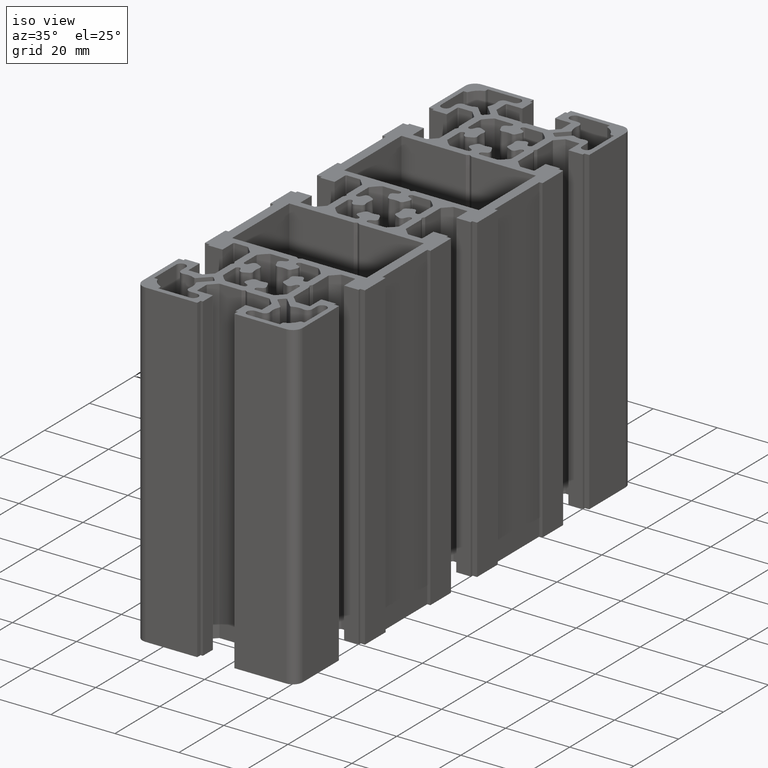
[diagram: clean part render]
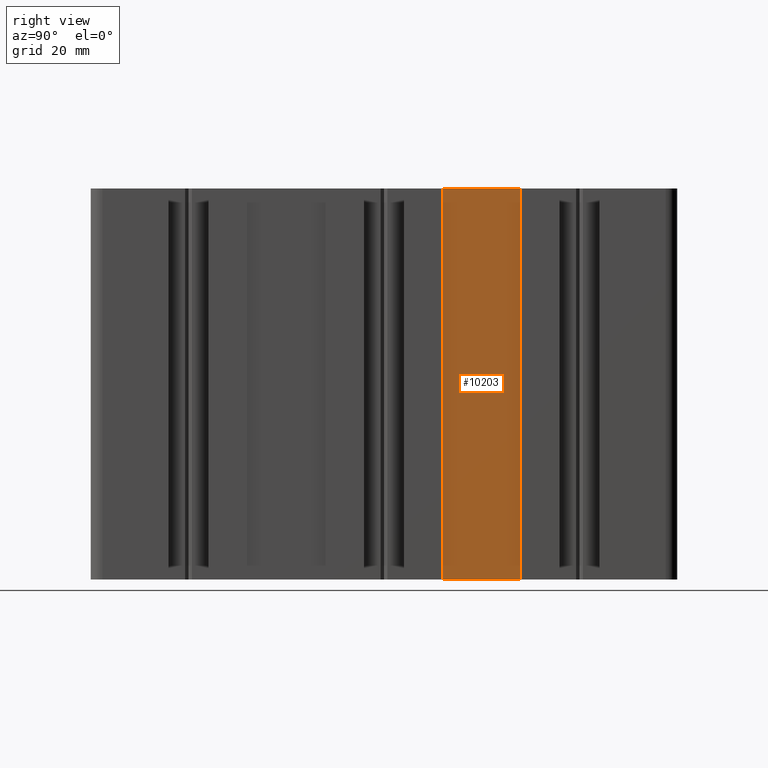
[diagram: tour spotlight — one face highlighted and labeled with its STEP entity id]
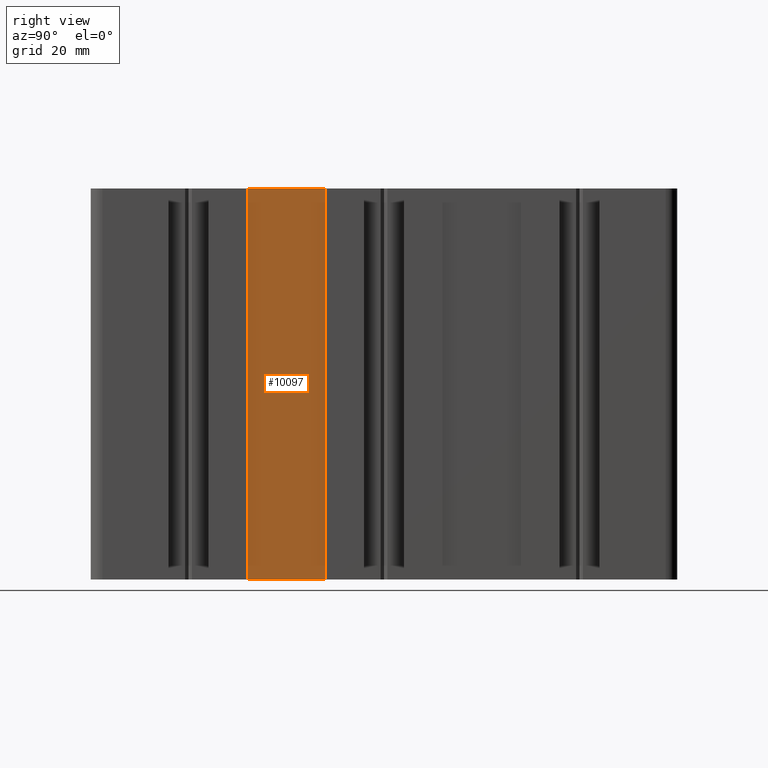
[diagram: tour spotlight — one face highlighted and labeled with its STEP entity id]
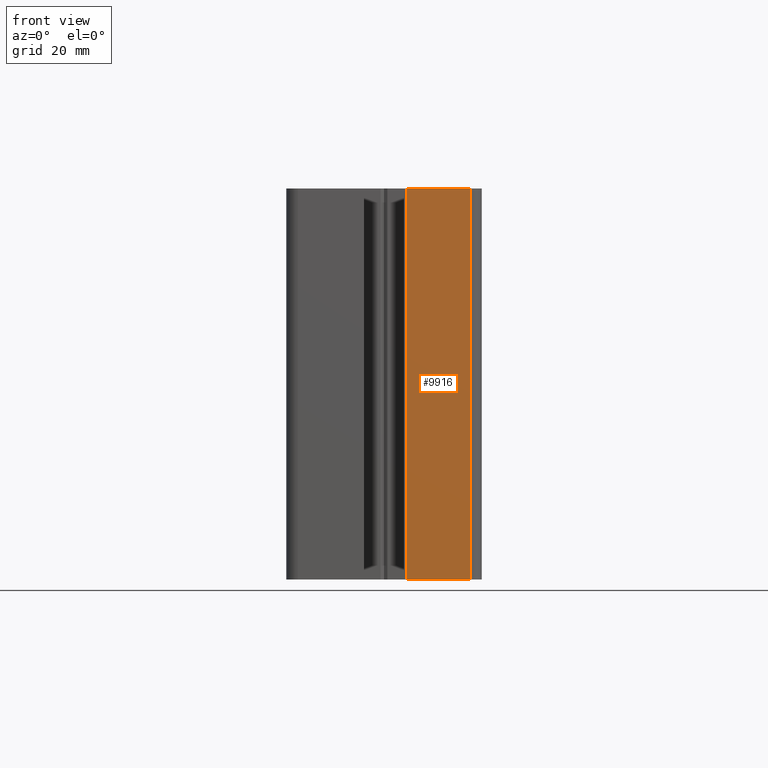
[diagram: tour spotlight — one face highlighted and labeled with its STEP entity id]
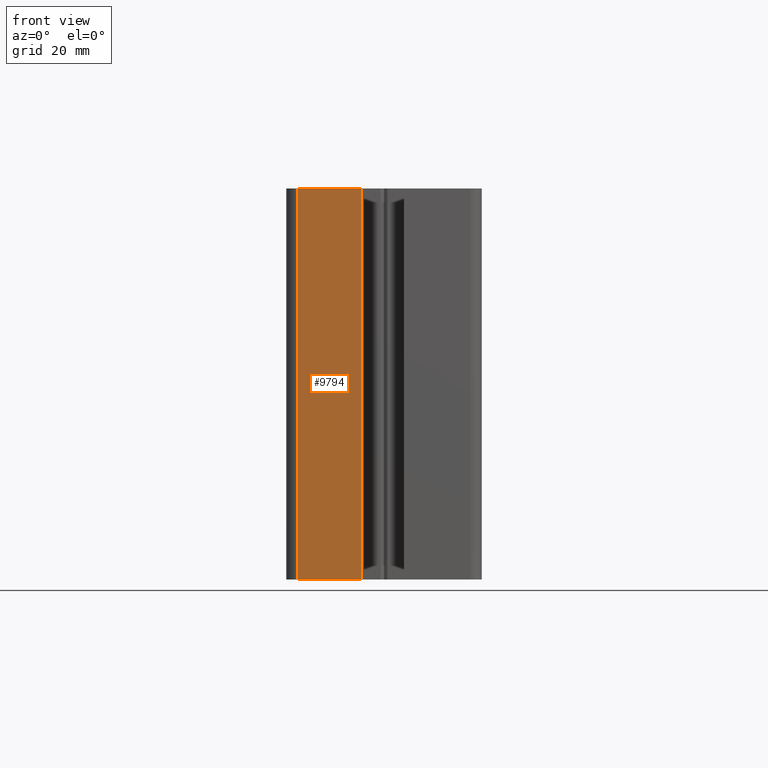
[diagram: tour spotlight — one face highlighted and labeled with its STEP entity id]
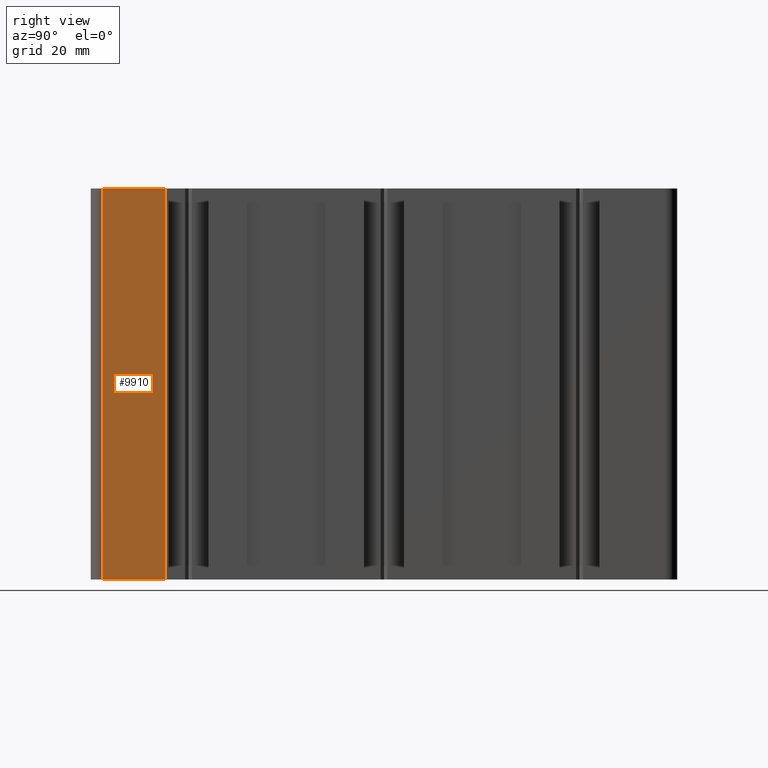
[diagram: tour spotlight — one face highlighted and labeled with its STEP entity id]
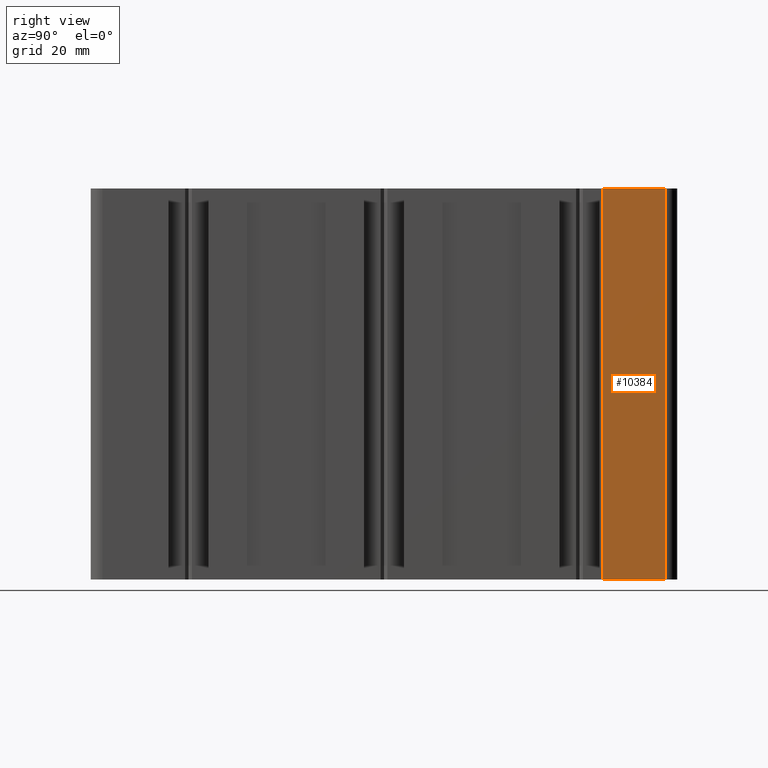
[diagram: tour spotlight — one face highlighted and labeled with its STEP entity id]
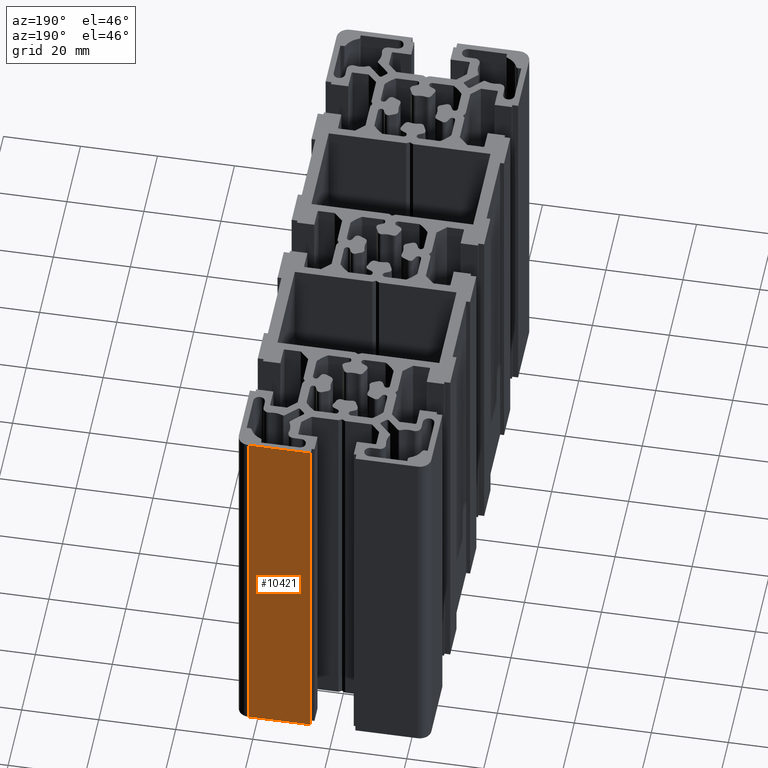
[diagram: tour spotlight — one face highlighted and labeled with its STEP entity id]
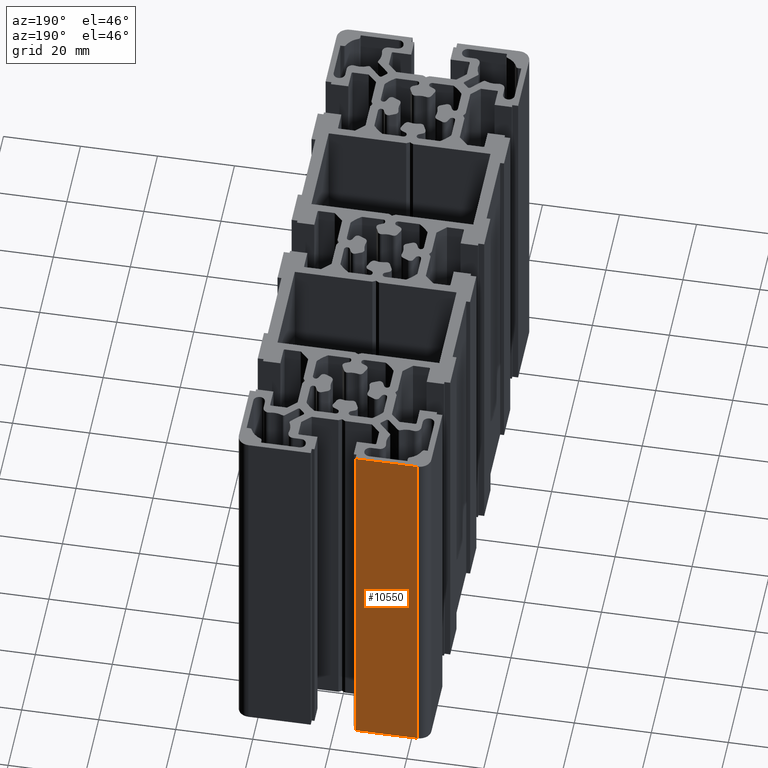
[diagram: tour spotlight — one face highlighted and labeled with its STEP entity id]
A machine part: a face-by-face anatomy tour. The part has 509 B-rep faces; the first image is the clean iso view, then the 8 largest visible faces are spotlighted one at a time (largest first), each with its STEP entity span.

Face 1 — right view, entity #10203. In plain terms, the highlighted planar face has unit normal (-1, 0, 0).
Definition (entity closure, byte-faithful):
#342 = EDGE_CURVE ( 'NONE', #16862, #16540, #12971, .T. ) ;
#2269 = FACE_OUTER_BOUND ( 'NONE', #10215, .T. ) ;
#2281 = PLANE ( 'NONE',  #2315 ) ;
#2310 = DIRECTION ( 'NONE',  ( -8.500145032286353200E-015, -1.000000000000000000, 0.0000000000000000000 ) ) ;
#2315 = AXIS2_PLACEMENT_3D ( 'NONE', #2325, #2321, #2310 ) ;
#2316 = DIRECTION ( 'NONE',  ( -0.0000000000000000000, -0.0000000000000000000, -1.000000000000000000 ) ) ;
#2317 = VECTOR ( 'NONE', #2316, 1000.000000000000000 ) ;
#2318 = CARTESIAN_POINT ( 'NONE',  ( 23.99999999999986100, 34.99999999999977300, 100.0000000000000000 ) ) ;
#2319 = LINE ( 'NONE', #2318, #2317 ) ;
#2321 = DIRECTION ( 'NONE',  ( -1.000000000000000000, 8.500145032286353200E-015, 0.0000000000000000000 ) ) ;
#2325 = CARTESIAN_POINT ( 'NONE',  ( 23.99999999999969100, 14.99999999999977100, 100.0000000000000000 ) ) ;
#2411 = DIRECTION ( 'NONE',  ( -0.0000000000000000000, -0.0000000000000000000, -1.000000000000000000 ) ) ;
#2412 = VECTOR ( 'NONE', #2411, 1000.000000000000000 ) ;
#2413 = CARTESIAN_POINT ( 'NONE',  ( 23.99999999999969100, 14.99999999999977100, 100.0000000000000000 ) ) ;
#2414 = LINE ( 'NONE', #2413, #2412 ) ;
#6515 = CARTESIAN_POINT ( 'NONE',  ( 23.99999999999986100, 34.99999999999977300, 100.0000000000000000 ) ) ;
#6546 = CARTESIAN_POINT ( 'NONE',  ( 23.99999999999969100, 14.99999999999977100, 100.0000000000000000 ) ) ;
#7972 = VERTEX_POINT ( 'NONE', #15868 ) ;
#8006 = EDGE_CURVE ( 'NONE', #7972, #8016, #15913, .T. ) ;
#8016 = VERTEX_POINT ( 'NONE', #15905 ) ;
#10201 = EDGE_CURVE ( 'NONE', #16540, #8016, #2319, .T. ) ;
#10202 = ORIENTED_EDGE ( 'NONE', *, *, #10201, .F. ) ;
#10203 = ADVANCED_FACE ( 'NONE', ( #2269 ), #2281, .F. ) ;
#10204 = ORIENTED_EDGE ( 'NONE', *, *, #8006, .T. ) ;
#10206 = ORIENTED_EDGE ( 'NONE', *, *, #342, .F. ) ;
#10215 = EDGE_LOOP ( 'NONE', ( #10204, #10202, #10206, #10254 ) ) ;
#10254 = ORIENTED_EDGE ( 'NONE', *, *, #10260, .T. ) ;
#10260 = EDGE_CURVE ( 'NONE', #16862, #7972, #2414, .T. ) ;
#12968 = DIRECTION ( 'NONE',  ( 8.500145032286353200E-015, 1.000000000000000000, 0.0000000000000000000 ) ) ;
#12969 = VECTOR ( 'NONE', #12968, 1000.000000000000000 ) ;
#12970 = CARTESIAN_POINT ( 'NONE',  ( 23.99999999999969100, 14.99999999999977100, 100.0000000000000000 ) ) ;
#12971 = LINE ( 'NONE', #12970, #12969 ) ;
#15868 = CARTESIAN_POINT ( 'NONE',  ( 23.99999999999969100, 14.99999999999977100, 0.0000000000000000000 ) ) ;
#15905 = CARTESIAN_POINT ( 'NONE',  ( 23.99999999999986100, 34.99999999999977300, 0.0000000000000000000 ) ) ;
#15910 = DIRECTION ( 'NONE',  ( 8.500145032286353200E-015, 1.000000000000000000, 0.0000000000000000000 ) ) ;
#15911 = VECTOR ( 'NONE', #15910, 1000.000000000000000 ) ;
#15912 = CARTESIAN_POINT ( 'NONE',  ( 23.99999999999969100, 14.99999999999977100, 0.0000000000000000000 ) ) ;
#15913 = LINE ( 'NONE', #15912, #15911 ) ;
#16540 = VERTEX_POINT ( 'NONE', #6515 ) ;
#16862 = VERTEX_POINT ( 'NONE', #6546 ) ;

Face 2 — right view, entity #10097. In plain terms, the highlighted planar face has unit normal (-1, -0, 0).
Definition (entity closure, byte-faithful):
#2029 = DIRECTION ( 'NONE',  ( -0.0000000000000000000, -0.0000000000000000000, -1.000000000000000000 ) ) ;
#2030 = VECTOR ( 'NONE', #2029, 1000.000000000000000 ) ;
#2031 = CARTESIAN_POINT ( 'NONE',  ( 24.00000000000018100, -14.99999999999989000, 100.0000000000000000 ) ) ;
#2033 = LINE ( 'NONE', #2031, #2030 ) ;
#2122 = PLANE ( 'NONE',  #2137 ) ;
#2123 = DIRECTION ( 'NONE',  ( -0.0000000000000000000, -0.0000000000000000000, -1.000000000000000000 ) ) ;
#2124 = VECTOR ( 'NONE', #2123, 1000.000000000000000 ) ;
#2125 = CARTESIAN_POINT ( 'NONE',  ( 24.00000000000099100, -34.99999999999989300, 100.0000000000000000 ) ) ;
#2126 = LINE ( 'NONE', #2125, #2124 ) ;
#2135 = FACE_OUTER_BOUND ( 'NONE', #10095, .T. ) ;
#2137 = AXIS2_PLACEMENT_3D ( 'NONE', #2143, #2179, #2178 ) ;
#2143 = CARTESIAN_POINT ( 'NONE',  ( 24.00000000000018100, -14.99999999999989000, 100.0000000000000000 ) ) ;
#2178 = DIRECTION ( 'NONE',  ( 4.059252933785728000E-014, -1.000000000000000000, 0.0000000000000000000 ) ) ;
#2179 = DIRECTION ( 'NONE',  ( -1.000000000000000000, -4.059252933785728000E-014, 0.0000000000000000000 ) ) ;
#6748 = VERTEX_POINT ( 'NONE', #13634 ) ;
#6760 = VERTEX_POINT ( 'NONE', #13635 ) ;
#6766 = EDGE_CURVE ( 'NONE', #6748, #6760, #13646, .T. ) ;
#8081 = EDGE_CURVE ( 'NONE', #8095, #8100, #16033, .T. ) ;
#8095 = VERTEX_POINT ( 'NONE', #16069 ) ;
#8100 = VERTEX_POINT ( 'NONE', #16062 ) ;
#10032 = EDGE_CURVE ( 'NONE', #6760, #8100, #2033, .T. ) ;
#10033 = ORIENTED_EDGE ( 'NONE', *, *, #8081, .T. ) ;
#10036 = ORIENTED_EDGE ( 'NONE', *, *, #10088, .T. ) ;
#10088 = EDGE_CURVE ( 'NONE', #6748, #8095, #2126, .T. ) ;
#10092 = ORIENTED_EDGE ( 'NONE', *, *, #6766, .F. ) ;
#10094 = ORIENTED_EDGE ( 'NONE', *, *, #10032, .F. ) ;
#10095 = EDGE_LOOP ( 'NONE', ( #10033, #10094, #10092, #10036 ) ) ;
#10097 = ADVANCED_FACE ( 'NONE', ( #2135 ), #2122, .F. ) ;
#13634 = CARTESIAN_POINT ( 'NONE',  ( 24.00000000000099100, -34.99999999999989300, 100.0000000000000000 ) ) ;
#13635 = CARTESIAN_POINT ( 'NONE',  ( 24.00000000000018100, -14.99999999999989000, 100.0000000000000000 ) ) ;
#13643 = DIRECTION ( 'NONE',  ( -4.059252933785728000E-014, 1.000000000000000000, -0.0000000000000000000 ) ) ;
#13644 = VECTOR ( 'NONE', #13643, 1000.000000000000000 ) ;
#13645 = CARTESIAN_POINT ( 'NONE',  ( 24.00000000000018100, -14.99999999999989000, 100.0000000000000000 ) ) ;
#13646 = LINE ( 'NONE', #13645, #13644 ) ;
#16030 = DIRECTION ( 'NONE',  ( -4.059252933785728000E-014, 1.000000000000000000, -0.0000000000000000000 ) ) ;
#16031 = VECTOR ( 'NONE', #16030, 1000.000000000000000 ) ;
#16032 = CARTESIAN_POINT ( 'NONE',  ( 24.00000000000018100, -14.99999999999989000, 0.0000000000000000000 ) ) ;
#16033 = LINE ( 'NONE', #16032, #16031 ) ;
#16062 = CARTESIAN_POINT ( 'NONE',  ( 24.00000000000018100, -14.99999999999989000, 0.0000000000000000000 ) ) ;
#16069 = CARTESIAN_POINT ( 'NONE',  ( 24.00000000000099100, -34.99999999999989300, 0.0000000000000000000 ) ) ;

Face 3 — front view, entity #9916. In plain terms, the highlighted planar face has unit normal (-0, 1, 0).
Definition (entity closure, byte-faithful):
#1136 = PLANE ( 'NONE',  #1628 ) ;
#1618 = FACE_OUTER_BOUND ( 'NONE', #9914, .T. ) ;
#1628 = AXIS2_PLACEMENT_3D ( 'NONE', #1876, #1862, #1867 ) ;
#1797 = DIRECTION ( 'NONE',  ( -0.0000000000000000000, -0.0000000000000000000, -1.000000000000000000 ) ) ;
#1798 = VECTOR ( 'NONE', #1797, 1000.000000000000000 ) ;
#1799 = CARTESIAN_POINT ( 'NONE',  ( 5.799999237062976000, -75.00000000000072500, 100.0000000000000000 ) ) ;
#1805 = LINE ( 'NONE', #1799, #1798 ) ;
#1862 = DIRECTION ( 'NONE',  ( -3.255283406550048900E-014, 1.000000000000000000, 0.0000000000000000000 ) ) ;
#1867 = DIRECTION ( 'NONE',  ( -1.000000000000000000, -3.255283406550048900E-014, 0.0000000000000000000 ) ) ;
#1876 = CARTESIAN_POINT ( 'NONE',  ( 5.799999237062976000, -75.00000000000072500, 100.0000000000000000 ) ) ;
#1906 = DIRECTION ( 'NONE',  ( -0.0000000000000000000, -0.0000000000000000000, -1.000000000000000000 ) ) ;
#1907 = VECTOR ( 'NONE', #1906, 1000.000000000000000 ) ;
#1908 = CARTESIAN_POINT ( 'NONE',  ( 22.00000000000243000, -75.00000000000018500, 100.0000000000000000 ) ) ;
#1909 = LINE ( 'NONE', #1908, #1907 ) ;
#6683 = VERTEX_POINT ( 'NONE', #13505 ) ;
#6690 = EDGE_CURVE ( 'NONE', #6718, #6683, #13546, .T. ) ;
#6718 = VERTEX_POINT ( 'NONE', #13561 ) ;
#8181 = VERTEX_POINT ( 'NONE', #16210 ) ;
#8182 = VERTEX_POINT ( 'NONE', #16205 ) ;
#8187 = EDGE_CURVE ( 'NONE', #8181, #8182, #16193, .T. ) ;
#9868 = EDGE_CURVE ( 'NONE', #6718, #8181, #1805, .T. ) ;
#9869 = ORIENTED_EDGE ( 'NONE', *, *, #8187, .T. ) ;
#9914 = EDGE_LOOP ( 'NONE', ( #9869, #9927, #9921, #9920 ) ) ;
#9916 = ADVANCED_FACE ( 'NONE', ( #1618 ), #1136, .F. ) ;
#9917 = EDGE_CURVE ( 'NONE', #6683, #8182, #1909, .T. ) ;
#9920 = ORIENTED_EDGE ( 'NONE', *, *, #9868, .T. ) ;
#9921 = ORIENTED_EDGE ( 'NONE', *, *, #6690, .F. ) ;
#9927 = ORIENTED_EDGE ( 'NONE', *, *, #9917, .F. ) ;
#13505 = CARTESIAN_POINT ( 'NONE',  ( 22.00000000000243000, -75.00000000000018500, 100.0000000000000000 ) ) ;
#13543 = DIRECTION ( 'NONE',  ( 1.000000000000000000, 3.255283406550048900E-014, 0.0000000000000000000 ) ) ;
#13544 = VECTOR ( 'NONE', #13543, 1000.000000000000000 ) ;
#13545 = CARTESIAN_POINT ( 'NONE',  ( 5.799999237062976000, -75.00000000000072500, 100.0000000000000000 ) ) ;
#13546 = LINE ( 'NONE', #13545, #13544 ) ;
#13561 = CARTESIAN_POINT ( 'NONE',  ( 5.799999237062976000, -75.00000000000072500, 100.0000000000000000 ) ) ;
#16191 = VECTOR ( 'NONE', #16246, 1000.000000000000000 ) ;
#16192 = CARTESIAN_POINT ( 'NONE',  ( 5.799999237062976000, -75.00000000000072500, 0.0000000000000000000 ) ) ;
#16193 = LINE ( 'NONE', #16192, #16191 ) ;
#16205 = CARTESIAN_POINT ( 'NONE',  ( 22.00000000000243000, -75.00000000000018500, 0.0000000000000000000 ) ) ;
#16210 = CARTESIAN_POINT ( 'NONE',  ( 5.799999237062976000, -75.00000000000072500, 0.0000000000000000000 ) ) ;
#16246 = DIRECTION ( 'NONE',  ( 1.000000000000000000, 3.255283406550048900E-014, 0.0000000000000000000 ) ) ;

Face 4 — front view, entity #9794. In plain terms, the highlighted planar face has unit normal (-0, 1, 0).
Definition (entity closure, byte-faithful):
#156 = CARTESIAN_POINT ( 'NONE',  ( -5.799999237058117700, -75.00000000000108000, 100.0000000000000000 ) ) ;
#160 = CARTESIAN_POINT ( 'NONE',  ( -21.99999999999757000, -75.00000000000160600, 100.0000000000000000 ) ) ;
#161 = DIRECTION ( 'NONE',  ( 1.000000000000000000, 3.255283406550048900E-014, -0.0000000000000000000 ) ) ;
#162 = VECTOR ( 'NONE', #161, 1000.000000000000000 ) ;
#163 = CARTESIAN_POINT ( 'NONE',  ( -5.799999237058117700, -75.00000000000108000, 100.0000000000000000 ) ) ;
#164 = LINE ( 'NONE', #163, #162 ) ;
#1675 = LINE ( 'NONE', #1729, #1728 ) ;
#1676 = DIRECTION ( 'NONE',  ( -0.0000000000000000000, -0.0000000000000000000, -1.000000000000000000 ) ) ;
#1677 = VECTOR ( 'NONE', #1676, 1000.000000000000000 ) ;
#1678 = CARTESIAN_POINT ( 'NONE',  ( -21.99999999999757000, -75.00000000000160600, 100.0000000000000000 ) ) ;
#1679 = FACE_OUTER_BOUND ( 'NONE', #9741, .T. ) ;
#1684 = LINE ( 'NONE', #1678, #1677 ) ;
#1720 = DIRECTION ( 'NONE',  ( -1.000000000000000000, -3.255283406550048900E-014, 0.0000000000000000000 ) ) ;
#1721 = DIRECTION ( 'NONE',  ( -3.255283406550048900E-014, 1.000000000000000000, 0.0000000000000000000 ) ) ;
#1722 = CARTESIAN_POINT ( 'NONE',  ( -5.799999237058117700, -75.00000000000108000, 100.0000000000000000 ) ) ;
#1723 = AXIS2_PLACEMENT_3D ( 'NONE', #1722, #1721, #1720 ) ;
#1725 = PLANE ( 'NONE',  #1723 ) ;
#1727 = DIRECTION ( 'NONE',  ( -0.0000000000000000000, -0.0000000000000000000, -1.000000000000000000 ) ) ;
#1728 = VECTOR ( 'NONE', #1727, 1000.000000000000000 ) ;
#1729 = CARTESIAN_POINT ( 'NONE',  ( -5.799999237058117700, -75.00000000000108000, 100.0000000000000000 ) ) ;
#8202 = VERTEX_POINT ( 'NONE', #16229 ) ;
#8206 = EDGE_CURVE ( 'NONE', #8202, #8214, #16272, .T. ) ;
#8214 = VERTEX_POINT ( 'NONE', #16266 ) ;
#8869 = EDGE_CURVE ( 'NONE', #8871, #8877, #164, .T. ) ;
#8871 = VERTEX_POINT ( 'NONE', #160 ) ;
#8877 = VERTEX_POINT ( 'NONE', #156 ) ;
#9741 = EDGE_LOOP ( 'NONE', ( #9795, #9793, #9797, #9778 ) ) ;
#9778 = ORIENTED_EDGE ( 'NONE', *, *, #9784, .T. ) ;
#9784 = EDGE_CURVE ( 'NONE', #8871, #8202, #1684, .T. ) ;
#9792 = EDGE_CURVE ( 'NONE', #8877, #8214, #1675, .T. ) ;
#9793 = ORIENTED_EDGE ( 'NONE', *, *, #9792, .F. ) ;
#9794 = ADVANCED_FACE ( 'NONE', ( #1679 ), #1725, .F. ) ;
#9795 = ORIENTED_EDGE ( 'NONE', *, *, #8206, .T. ) ;
#9797 = ORIENTED_EDGE ( 'NONE', *, *, #8869, .F. ) ;
#16229 = CARTESIAN_POINT ( 'NONE',  ( -21.99999999999757000, -75.00000000000160600, 0.0000000000000000000 ) ) ;
#16262 = DIRECTION ( 'NONE',  ( 1.000000000000000000, 3.255283406550048900E-014, -0.0000000000000000000 ) ) ;
#16263 = VECTOR ( 'NONE', #16262, 1000.000000000000000 ) ;
#16264 = CARTESIAN_POINT ( 'NONE',  ( -5.799999237058117700, -75.00000000000108000, 0.0000000000000000000 ) ) ;
#16266 = CARTESIAN_POINT ( 'NONE',  ( -5.799999237058117700, -75.00000000000108000, 0.0000000000000000000 ) ) ;
#16272 = LINE ( 'NONE', #16264, #16263 ) ;

Face 5 — right view, entity #9910. In plain terms, the highlighted planar face has unit normal (-1, -0, 0).
Definition (entity closure, byte-faithful):
#1632 = FACE_OUTER_BOUND ( 'NONE', #9872, .T. ) ;
#1821 = DIRECTION ( 'NONE',  ( -1.000000000000000000, -2.912621995334257300E-014, 0.0000000000000000000 ) ) ;
#1853 = DIRECTION ( 'NONE',  ( -0.0000000000000000000, -0.0000000000000000000, -1.000000000000000000 ) ) ;
#1854 = VECTOR ( 'NONE', #1853, 1000.000000000000000 ) ;
#1855 = CARTESIAN_POINT ( 'NONE',  ( 25.00000000000180800, -55.79999923706065300, 100.0000000000000000 ) ) ;
#1857 = LINE ( 'NONE', #1855, #1854 ) ;
#1858 = CARTESIAN_POINT ( 'NONE',  ( 25.00000000000180800, -55.79999923706065300, 100.0000000000000000 ) ) ;
#1863 = PLANE ( 'NONE',  #1866 ) ;
#1866 = AXIS2_PLACEMENT_3D ( 'NONE', #1858, #1821, #1869 ) ;
#1869 = DIRECTION ( 'NONE',  ( 2.912621995334257300E-014, -1.000000000000000000, 0.0000000000000000000 ) ) ;
#1897 = DIRECTION ( 'NONE',  ( -0.0000000000000000000, -0.0000000000000000000, -1.000000000000000000 ) ) ;
#1898 = VECTOR ( 'NONE', #1897, 1000.000000000000000 ) ;
#1899 = CARTESIAN_POINT ( 'NONE',  ( 25.00000000000228100, -72.00000000000008500, 100.0000000000000000 ) ) ;
#1900 = LINE ( 'NONE', #1899, #1898 ) ;
#6688 = EDGE_CURVE ( 'NONE', #6721, #6711, #13551, .T. ) ;
#6711 = VERTEX_POINT ( 'NONE', #13577 ) ;
#6721 = VERTEX_POINT ( 'NONE', #13556 ) ;
#8111 = VERTEX_POINT ( 'NONE', #16094 ) ;
#8112 = VERTEX_POINT ( 'NONE', #16063 ) ;
#8114 = EDGE_CURVE ( 'NONE', #8111, #8112, #16087, .T. ) ;
#9872 = EDGE_LOOP ( 'NONE', ( #9911, #9909, #9958, #9913 ) ) ;
#9908 = EDGE_CURVE ( 'NONE', #6711, #8112, #1857, .T. ) ;
#9909 = ORIENTED_EDGE ( 'NONE', *, *, #9908, .F. ) ;
#9910 = ADVANCED_FACE ( 'NONE', ( #1632 ), #1863, .F. ) ;
#9911 = ORIENTED_EDGE ( 'NONE', *, *, #8114, .T. ) ;
#9913 = ORIENTED_EDGE ( 'NONE', *, *, #9922, .T. ) ;
#9922 = EDGE_CURVE ( 'NONE', #6721, #8111, #1900, .T. ) ;
#9958 = ORIENTED_EDGE ( 'NONE', *, *, #6688, .F. ) ;
#13548 = DIRECTION ( 'NONE',  ( -2.912621995334256600E-014, 1.000000000000000000, -0.0000000000000000000 ) ) ;
#13549 = VECTOR ( 'NONE', #13548, 1000.000000000000000 ) ;
#13550 = CARTESIAN_POINT ( 'NONE',  ( 25.00000000000180800, -55.79999923706065300, 100.0000000000000000 ) ) ;
#13551 = LINE ( 'NONE', #13550, #13549 ) ;
#13556 = CARTESIAN_POINT ( 'NONE',  ( 25.00000000000228100, -72.00000000000008500, 100.0000000000000000 ) ) ;
#13577 = CARTESIAN_POINT ( 'NONE',  ( 25.00000000000180800, -55.79999923706065300, 100.0000000000000000 ) ) ;
#16063 = CARTESIAN_POINT ( 'NONE',  ( 25.00000000000180800, -55.79999923706065300, 0.0000000000000000000 ) ) ;
#16084 = DIRECTION ( 'NONE',  ( -2.912621995334256600E-014, 1.000000000000000000, -0.0000000000000000000 ) ) ;
#16085 = VECTOR ( 'NONE', #16084, 1000.000000000000000 ) ;
#16086 = CARTESIAN_POINT ( 'NONE',  ( 25.00000000000180800, -55.79999923706065300, 0.0000000000000000000 ) ) ;
#16087 = LINE ( 'NONE', #16086, #16085 ) ;
#16094 = CARTESIAN_POINT ( 'NONE',  ( 25.00000000000228100, -72.00000000000008500, 0.0000000000000000000 ) ) ;

Face 6 — right view, entity #10384. In plain terms, the highlighted planar face has unit normal (-1, -0, 0).
Definition (entity closure, byte-faithful):
#1117 = VERTEX_POINT ( 'NONE', #13022 ) ;
#2536 = DIRECTION ( 'NONE',  ( 3.212450730148076100E-015, -1.000000000000000000, 0.0000000000000000000 ) ) ;
#2537 = DIRECTION ( 'NONE',  ( -1.000000000000000000, -3.212450730148076100E-015, 0.0000000000000000000 ) ) ;
#2539 = CARTESIAN_POINT ( 'NONE',  ( 25.00000000000000000, 55.79999923706056100, 100.0000000000000000 ) ) ;
#2540 = LINE ( 'NONE', #2586, #2585 ) ;
#2548 = FACE_OUTER_BOUND ( 'NONE', #10382, .T. ) ;
#2549 = AXIS2_PLACEMENT_3D ( 'NONE', #2539, #2537, #2536 ) ;
#2554 = PLANE ( 'NONE',  #2549 ) ;
#2584 = DIRECTION ( 'NONE',  ( -0.0000000000000000000, -0.0000000000000000000, -1.000000000000000000 ) ) ;
#2585 = VECTOR ( 'NONE', #2584, 1000.000000000000000 ) ;
#2586 = CARTESIAN_POINT ( 'NONE',  ( 25.00000000000000000, 55.79999923706056100, 100.0000000000000000 ) ) ;
#2588 = DIRECTION ( 'NONE',  ( -0.0000000000000000000, -0.0000000000000000000, -1.000000000000000000 ) ) ;
#2589 = VECTOR ( 'NONE', #2588, 1000.000000000000000 ) ;
#2590 = CARTESIAN_POINT ( 'NONE',  ( 24.99999999999994300, 72.00000000000001400, 100.0000000000000000 ) ) ;
#2591 = LINE ( 'NONE', #2590, #2589 ) ;
#4596 = VERTEX_POINT ( 'NONE', #13256 ) ;
#4812 = EDGE_CURVE ( 'NONE', #1117, #4596, #13273, .T. ) ;
#7975 = VERTEX_POINT ( 'NONE', #15869 ) ;
#7981 = EDGE_CURVE ( 'NONE', #7983, #7975, #15852, .T. ) ;
#7983 = VERTEX_POINT ( 'NONE', #15630 ) ;
#10328 = ORIENTED_EDGE ( 'NONE', *, *, #10385, .F. ) ;
#10331 = ORIENTED_EDGE ( 'NONE', *, *, #7981, .T. ) ;
#10367 = ORIENTED_EDGE ( 'NONE', *, *, #10387, .T. ) ;
#10368 = ORIENTED_EDGE ( 'NONE', *, *, #4812, .F. ) ;
#10382 = EDGE_LOOP ( 'NONE', ( #10331, #10328, #10368, #10367 ) ) ;
#10384 = ADVANCED_FACE ( 'NONE', ( #2548 ), #2554, .F. ) ;
#10385 = EDGE_CURVE ( 'NONE', #4596, #7975, #2591, .T. ) ;
#10387 = EDGE_CURVE ( 'NONE', #1117, #7983, #2540, .T. ) ;
#13022 = CARTESIAN_POINT ( 'NONE',  ( 25.00000000000000000, 55.79999923706056100, 100.0000000000000000 ) ) ;
#13256 = CARTESIAN_POINT ( 'NONE',  ( 24.99999999999994300, 72.00000000000001400, 100.0000000000000000 ) ) ;
#13270 = DIRECTION ( 'NONE',  ( -3.212450730148075700E-015, 1.000000000000000000, 0.0000000000000000000 ) ) ;
#13271 = VECTOR ( 'NONE', #13270, 1000.000000000000000 ) ;
#13272 = CARTESIAN_POINT ( 'NONE',  ( 25.00000000000000000, 55.79999923706056100, 100.0000000000000000 ) ) ;
#13273 = LINE ( 'NONE', #13272, #13271 ) ;
#15630 = CARTESIAN_POINT ( 'NONE',  ( 25.00000000000000000, 55.79999923706056100, 0.0000000000000000000 ) ) ;
#15849 = DIRECTION ( 'NONE',  ( -3.212450730148075700E-015, 1.000000000000000000, 0.0000000000000000000 ) ) ;
#15850 = VECTOR ( 'NONE', #15849, 1000.000000000000000 ) ;
#15851 = CARTESIAN_POINT ( 'NONE',  ( 25.00000000000000000, 55.79999923706056100, 0.0000000000000000000 ) ) ;
#15852 = LINE ( 'NONE', #15851, #15850 ) ;
#15869 = CARTESIAN_POINT ( 'NONE',  ( 24.99999999999994300, 72.00000000000001400, 0.0000000000000000000 ) ) ;

Face 7 — auxiliary view, entity #10421. In plain terms, the highlighted planar face has unit normal (0, -1, 0).
Definition (entity closure, byte-faithful):
#1807 = VERTEX_POINT ( 'NONE', #13058 ) ;
#2312 = VERTEX_POINT ( 'NONE', #13092 ) ;
#2512 = LINE ( 'NONE', #2560, #2559 ) ;
#2550 = DIRECTION ( 'NONE',  ( -0.0000000000000000000, -0.0000000000000000000, -1.000000000000000000 ) ) ;
#2551 = VECTOR ( 'NONE', #2550, 1000.000000000000000 ) ;
#2555 = CARTESIAN_POINT ( 'NONE',  ( 5.799999237060550400, 75.00000000000000000, 100.0000000000000000 ) ) ;
#2556 = LINE ( 'NONE', #2555, #2551 ) ;
#2558 = DIRECTION ( 'NONE',  ( -0.0000000000000000000, -0.0000000000000000000, -1.000000000000000000 ) ) ;
#2559 = VECTOR ( 'NONE', #2558, 1000.000000000000000 ) ;
#2560 = CARTESIAN_POINT ( 'NONE',  ( 22.00000000000000000, 75.00000000000000000, 100.0000000000000000 ) ) ;
#2593 = DIRECTION ( 'NONE',  ( 0.0000000000000000000, -0.0000000000000000000, -1.000000000000000000 ) ) ;
#2594 = DIRECTION ( 'NONE',  ( 0.0000000000000000000, -1.000000000000000000, 0.0000000000000000000 ) ) ;
#2597 = FACE_OUTER_BOUND ( 'NONE', #10380, .T. ) ;
#2606 = CARTESIAN_POINT ( 'NONE',  ( 5.799999237060550400, 75.00000000000000000, 100.0000000000000000 ) ) ;
#2617 = PLANE ( 'NONE',  #2618 ) ;
#2618 = AXIS2_PLACEMENT_3D ( 'NONE', #2606, #2594, #2593 ) ;
#4767 = EDGE_CURVE ( 'NONE', #1807, #2312, #13283, .T. ) ;
#7861 = VERTEX_POINT ( 'NONE', #15649 ) ;
#7974 = EDGE_CURVE ( 'NONE', #7977, #7861, #15858, .T. ) ;
#7977 = VERTEX_POINT ( 'NONE', #15854 ) ;
#10369 = EDGE_CURVE ( 'NONE', #1807, #7977, #2512, .T. ) ;
#10376 = EDGE_CURVE ( 'NONE', #2312, #7861, #2556, .T. ) ;
#10377 = ORIENTED_EDGE ( 'NONE', *, *, #10376, .F. ) ;
#10380 = EDGE_LOOP ( 'NONE', ( #10422, #10377, #10425, #10424 ) ) ;
#10421 = ADVANCED_FACE ( 'NONE', ( #2597 ), #2617, .F. ) ;
#10422 = ORIENTED_EDGE ( 'NONE', *, *, #7974, .T. ) ;
#10424 = ORIENTED_EDGE ( 'NONE', *, *, #10369, .T. ) ;
#10425 = ORIENTED_EDGE ( 'NONE', *, *, #4767, .F. ) ;
#13058 = CARTESIAN_POINT ( 'NONE',  ( 22.00000000000000000, 75.00000000000000000, 100.0000000000000000 ) ) ;
#13092 = CARTESIAN_POINT ( 'NONE',  ( 5.799999237060550400, 75.00000000000000000, 100.0000000000000000 ) ) ;
#13280 = DIRECTION ( 'NONE',  ( -1.000000000000000000, -0.0000000000000000000, -0.0000000000000000000 ) ) ;
#13281 = VECTOR ( 'NONE', #13280, 1000.000000000000000 ) ;
#13282 = CARTESIAN_POINT ( 'NONE',  ( 5.799999237060550400, 75.00000000000000000, 100.0000000000000000 ) ) ;
#13283 = LINE ( 'NONE', #13282, #13281 ) ;
#15649 = CARTESIAN_POINT ( 'NONE',  ( 5.799999237060550400, 75.00000000000000000, 0.0000000000000000000 ) ) ;
#15854 = CARTESIAN_POINT ( 'NONE',  ( 22.00000000000000000, 75.00000000000000000, 0.0000000000000000000 ) ) ;
#15855 = DIRECTION ( 'NONE',  ( -1.000000000000000000, -0.0000000000000000000, -0.0000000000000000000 ) ) ;
#15856 = VECTOR ( 'NONE', #15855, 1000.000000000000000 ) ;
#15857 = CARTESIAN_POINT ( 'NONE',  ( 5.799999237060550400, 75.00000000000000000, 0.0000000000000000000 ) ) ;
#15858 = LINE ( 'NONE', #15857, #15856 ) ;

Face 8 — auxiliary view, entity #10550. In plain terms, the highlighted planar face has unit normal (0, -1, 0).
Definition (entity closure, byte-faithful):
#140 = DIRECTION ( 'NONE',  ( -0.0000000000000000000, -0.0000000000000000000, -1.000000000000000000 ) ) ;
#141 = VECTOR ( 'NONE', #140, 1000.000000000000000 ) ;
#142 = CARTESIAN_POINT ( 'NONE',  ( -22.00000000000000000, 75.00000000000000000, 100.0000000000000000 ) ) ;
#143 = LINE ( 'NONE', #142, #141 ) ;
#591 = CARTESIAN_POINT ( 'NONE',  ( -22.00000000000000000, 75.00000000000000000, 100.0000000000000000 ) ) ;
#2709 = DIRECTION ( 'NONE',  ( -0.0000000000000000000, -0.0000000000000000000, -1.000000000000000000 ) ) ;
#2710 = VECTOR ( 'NONE', #2709, 1000.000000000000000 ) ;
#2711 = CARTESIAN_POINT ( 'NONE',  ( -5.799999237060544200, 75.00000000000000000, 100.0000000000000000 ) ) ;
#2717 = LINE ( 'NONE', #2711, #2710 ) ;
#2780 = PLANE ( 'NONE',  #2781 ) ;
#2781 = AXIS2_PLACEMENT_3D ( 'NONE', #2796, #2831, #2830 ) ;
#2786 = FACE_OUTER_BOUND ( 'NONE', #10499, .T. ) ;
#2796 = CARTESIAN_POINT ( 'NONE',  ( -5.799999237060544200, 75.00000000000000000, 100.0000000000000000 ) ) ;
#2830 = DIRECTION ( 'NONE',  ( 0.0000000000000000000, -0.0000000000000000000, -1.000000000000000000 ) ) ;
#2831 = DIRECTION ( 'NONE',  ( 0.0000000000000000000, -1.000000000000000000, 0.0000000000000000000 ) ) ;
#5660 = VERTEX_POINT ( 'NONE', #13331 ) ;
#5699 = EDGE_CURVE ( 'NONE', #5660, #9109, #13378, .T. ) ;
#7881 = VERTEX_POINT ( 'NONE', #15680 ) ;
#7885 = VERTEX_POINT ( 'NONE', #15717 ) ;
#7888 = EDGE_CURVE ( 'NONE', #7885, #7881, #15712, .T. ) ;
#8850 = EDGE_CURVE ( 'NONE', #9109, #7881, #143, .T. ) ;
#9109 = VERTEX_POINT ( 'NONE', #591 ) ;
#10499 = EDGE_LOOP ( 'NONE', ( #10552, #10512, #10551, #10555 ) ) ;
#10509 = EDGE_CURVE ( 'NONE', #5660, #7885, #2717, .T. ) ;
#10512 = ORIENTED_EDGE ( 'NONE', *, *, #8850, .F. ) ;
#10550 = ADVANCED_FACE ( 'NONE', ( #2786 ), #2780, .F. ) ;
#10551 = ORIENTED_EDGE ( 'NONE', *, *, #5699, .F. ) ;
#10552 = ORIENTED_EDGE ( 'NONE', *, *, #7888, .T. ) ;
#10555 = ORIENTED_EDGE ( 'NONE', *, *, #10509, .T. ) ;
#13331 = CARTESIAN_POINT ( 'NONE',  ( -5.799999237060544200, 75.00000000000000000, 100.0000000000000000 ) ) ;
#13371 = DIRECTION ( 'NONE',  ( -1.000000000000000000, 0.0000000000000000000, 0.0000000000000000000 ) ) ;
#13372 = VECTOR ( 'NONE', #13371, 1000.000000000000000 ) ;
#13377 = CARTESIAN_POINT ( 'NONE',  ( -5.799999237060544200, 75.00000000000000000, 100.0000000000000000 ) ) ;
#13378 = LINE ( 'NONE', #13377, #13372 ) ;
#15680 = CARTESIAN_POINT ( 'NONE',  ( -22.00000000000000000, 75.00000000000000000, 0.0000000000000000000 ) ) ;
#15709 = DIRECTION ( 'NONE',  ( -1.000000000000000000, 0.0000000000000000000, 0.0000000000000000000 ) ) ;
#15710 = VECTOR ( 'NONE', #15709, 1000.000000000000000 ) ;
#15711 = CARTESIAN_POINT ( 'NONE',  ( -5.799999237060544200, 75.00000000000000000, 0.0000000000000000000 ) ) ;
#15712 = LINE ( 'NONE', #15711, #15710 ) ;
#15717 = CARTESIAN_POINT ( 'NONE',  ( -5.799999237060544200, 75.00000000000000000, 0.0000000000000000000 ) ) ;